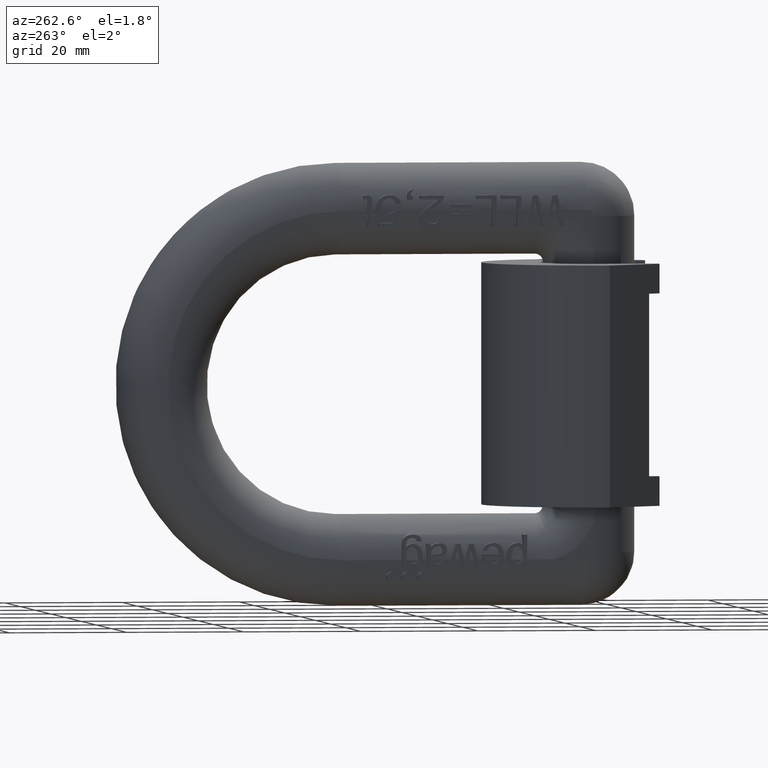
[diagram: clean part render]
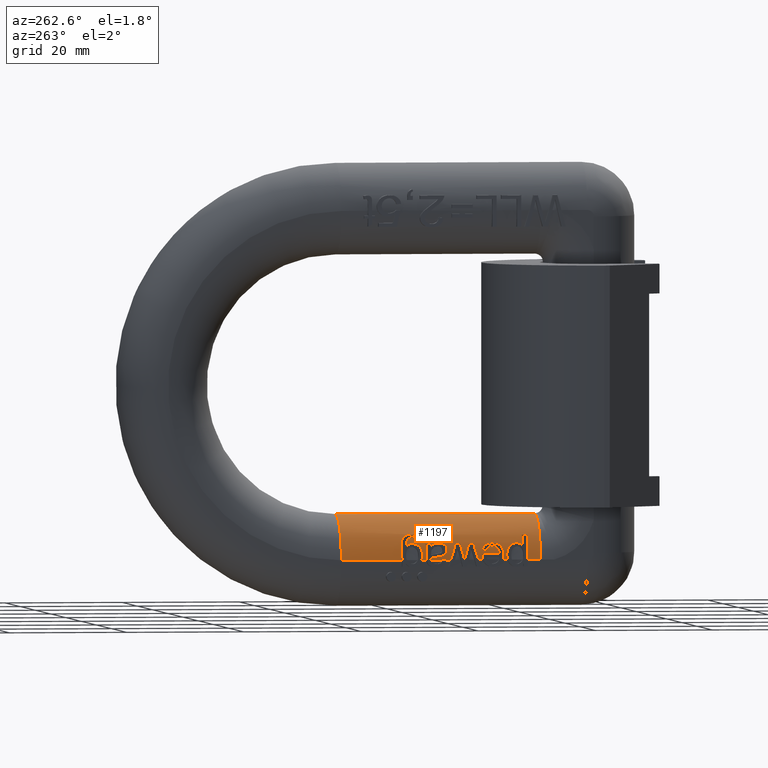
[diagram: same view with one face highlighted and labeled with its STEP entity id]
A machine part, auxiliary view. The second image highlights one B-rep face of the part: STEP entity #1197.
In plain terms, the highlighted cylindrical surface (partial cylindrical patch) has radius 7.9 mm, axis along (0, -1, 0).
Its self-contained STEP definition (entity closure, byte-faithful):
#268=ELLIPSE('',#9112,54.9746638213524,7.9);
#269=ELLIPSE('',#9113,59.4329778568096,7.9);
#270=ELLIPSE('',#9114,8.28975096446927,7.9);
#271=ELLIPSE('',#9115,8.18283813457714,7.9);
#272=ELLIPSE('',#9116,8.11019481597618,7.9);
#273=ELLIPSE('',#9117,8.17815357367076,7.9);
#274=ELLIPSE('',#9118,8.27441263998553,7.9);
#275=ELLIPSE('',#9119,65.836218480007,7.9);
#369=B_SPLINE_CURVE_WITH_KNOTS('',3,(#12014,#12015,#12016,#12017,#12018,
#12019,#12020,#12021),.UNSPECIFIED.,.F.,.F.,(4,2,2,4),(0.,0.25,0.499999999999999,
1.),.UNSPECIFIED.);
#370=B_SPLINE_CURVE_WITH_KNOTS('',3,(#12023,#12024,#12025,#12026,#12027,
#12028,#12029,#12030,#12031,#12032,#12033,#12034,#12035),.UNSPECIFIED.,
 .F.,.F.,(4,3,3,3,4),(0.,0.24176473689426,0.480972546753489,0.759361589386125,
1.),.UNSPECIFIED.);
#371=B_SPLINE_CURVE_WITH_KNOTS('',3,(#12037,#12038,#12039,#12040,#12041,
#12042,#12043,#12044,#12045,#12046),.UNSPECIFIED.,.F.,.F.,(4,3,3,4),(0.,
0.416369219003351,0.649863940722507,1.),.UNSPECIFIED.);
#372=B_SPLINE_CURVE_WITH_KNOTS('',3,(#12050,#12051,#12052,#12053,#12054,
#12055,#12056,#12057,#12058,#12059),.UNSPECIFIED.,.F.,.F.,(4,3,3,4),(0.,
0.266725795287567,0.672329765067977,1.),.UNSPECIFIED.);
#373=B_SPLINE_CURVE_WITH_KNOTS('',3,(#12061,#12062,#12063,#12064,#12065,
#12066,#12067,#12068,#12069,#12070,#12071,#12072,#12073,#12074,#12075,#12076,
#12077,#12078,#12079),.UNSPECIFIED.,.F.,.F.,(4,3,3,3,3,3,4),(0.,0.205361258401847,
0.339576020856814,0.474464652459027,0.68051437567483,0.857676702943028,
1.),.UNSPECIFIED.);
#374=B_SPLINE_CURVE_WITH_KNOTS('',3,(#12081,#12082,#12083,#12084,#12085,
#12086,#12087,#12088,#12089,#12090),.UNSPECIFIED.,.F.,.F.,(4,3,3,4),(0.,
0.351665430108679,0.674575786209435,1.),.UNSPECIFIED.);
#375=B_SPLINE_CURVE_WITH_KNOTS('',3,(#12092,#12093,#12094,#12095,#12096,
#12097,#12098,#12099,#12100,#12101,#12102,#12103,#12104,#12105,#12106,#12107,
#12108,#12109,#12110,#12111,#12112,#12113,#12114,#12115,#12116,#12117,#12118,
#12119),.UNSPECIFIED.,.F.,.F.,(4,3,3,3,3,3,3,3,3,4),(0.,0.162690398862545,
0.329119794208848,0.491787862101795,0.586867478444821,0.682089444763664,
0.777742501821921,0.864141641901178,0.950430655072966,1.),.UNSPECIFIED.);
#376=B_SPLINE_CURVE_WITH_KNOTS('',3,(#12120,#12121,#12122,#12123,#12124,
#12125,#12126),.UNSPECIFIED.,.F.,.F.,(4,3,4),(0.,0.383230100666856,1.),
 .UNSPECIFIED.);
#377=B_SPLINE_CURVE_WITH_KNOTS('',3,(#12128,#12129,#12130,#12131,#12132,
#12133,#12134,#12135,#12136,#12137),.UNSPECIFIED.,.F.,.F.,(4,3,3,4),(0.,
0.493896497259497,0.746015072952451,1.),.UNSPECIFIED.);
#378=B_SPLINE_CURVE_WITH_KNOTS('',3,(#12141,#12142,#12143,#12144,#12145,
#12146,#12147,#12148,#12149,#12150),.UNSPECIFIED.,.F.,.F.,(4,3,3,4),(0.,
0.493329993894906,0.745432819452995,1.),.UNSPECIFIED.);
#379=B_SPLINE_CURVE_WITH_KNOTS('',3,(#12152,#12153,#12154,#12155,#12156,
#12157,#12158,#12159,#12160,#12161),.UNSPECIFIED.,.F.,.F.,(4,3,3,4),(0.,
0.282860198907264,0.56522817524869,1.),.UNSPECIFIED.);
#380=B_SPLINE_CURVE_WITH_KNOTS('',3,(#12163,#12164,#12165,#12166,#12167,
#12168,#12169,#12170,#12171,#12172,#12173,#12174,#12175,#12176,#12177,#12178,
#12179,#12180,#12181,#12182,#12183,#12184,#12185,#12186,#12187),
 .UNSPECIFIED.,.F.,.F.,(4,3,3,3,3,3,3,3,4),(0.,0.109163385157219,0.217497050881032,
0.34400954198123,0.455940887012628,0.570913130532747,0.720419089384934,
0.937787442280195,1.),.UNSPECIFIED.);
#381=B_SPLINE_CURVE_WITH_KNOTS('',3,(#12189,#12190,#12191,#12192,#12193,
#12194,#12195,#12196,#12197,#12198),.UNSPECIFIED.,.F.,.F.,(4,3,3,4),(0.,
0.259724632083226,0.519457267892592,1.),.UNSPECIFIED.);
#382=B_SPLINE_CURVE_WITH_KNOTS('',3,(#12200,#12201,#12202,#12203,#12204,
#12205,#12206,#12207,#12208,#12209),.UNSPECIFIED.,.F.,.F.,(4,3,3,4),(0.,
0.261704967900917,0.52348176610509,1.),.UNSPECIFIED.);
#383=B_SPLINE_CURVE_WITH_KNOTS('',3,(#12211,#12212,#12213,#12214,#12215,
#12216,#12217,#12218,#12219,#12220),.UNSPECIFIED.,.F.,.F.,(4,3,3,4),(0.,
0.331278685817493,0.665208018827146,1.),.UNSPECIFIED.);
#384=B_SPLINE_CURVE_WITH_KNOTS('',3,(#12222,#12223,#12224,#12225,#12226,
#12227,#12228,#12229,#12230,#12231),.UNSPECIFIED.,.F.,.F.,(4,3,3,4),(0.,
0.336078614500432,0.667704721056258,1.),.UNSPECIFIED.);
#385=B_SPLINE_CURVE_WITH_KNOTS('',3,(#12233,#12234,#12235,#12236,#12237,
#12238,#12239),.UNSPECIFIED.,.F.,.F.,(4,3,4),(0.,0.498654946956044,1.),
 .UNSPECIFIED.);
#386=B_SPLINE_CURVE_WITH_KNOTS('',3,(#12240,#12241,#12242,#12243),
 .UNSPECIFIED.,.F.,.F.,(4,4),(0.,1.),.UNSPECIFIED.);
#387=B_SPLINE_CURVE_WITH_KNOTS('',3,(#12247,#12248,#12249,#12250),
 .UNSPECIFIED.,.F.,.F.,(4,4),(0.,1.),.UNSPECIFIED.);
#388=B_SPLINE_CURVE_WITH_KNOTS('',3,(#12266,#12267,#12268,#12269,#12270,
#12271,#12272),.UNSPECIFIED.,.F.,.F.,(4,3,4),(0.,0.827048471838855,1.),
 .UNSPECIFIED.);
#389=B_SPLINE_CURVE_WITH_KNOTS('',3,(#12276,#12277,#12278,#12279,#12280,
#12281,#12282,#12283,#12284,#12285),.UNSPECIFIED.,.F.,.F.,(4,3,3,4),(0.,
0.296408323802665,0.754910841147842,1.),.UNSPECIFIED.);
#390=B_SPLINE_CURVE_WITH_KNOTS('',3,(#12287,#12288,#12289,#12290,#12291,
#12292,#12293,#12294,#12295,#12296,#12297,#12298,#12299,#12300,#12301,#12302),
 .UNSPECIFIED.,.F.,.F.,(4,3,3,3,3,4),(0.,0.208883477669322,0.41640821783203,
0.652710915912313,0.901558973866656,1.),.UNSPECIFIED.);
#391=B_SPLINE_CURVE_WITH_KNOTS('',3,(#12304,#12305,#12306,#12307,#12308,
#12309,#12310,#12311,#12312,#12313),.UNSPECIFIED.,.F.,.F.,(4,3,3,4),(0.,
0.290853063175634,0.582287601198476,1.),.UNSPECIFIED.);
#392=B_SPLINE_CURVE_WITH_KNOTS('',3,(#12317,#12318,#12319,#12320,#12321,
#12322,#12323,#12324,#12325,#12326),.UNSPECIFIED.,.F.,.F.,(4,3,3,4),(0.,
0.266409091287245,0.758119234004696,1.),.UNSPECIFIED.);
#393=B_SPLINE_CURVE_WITH_KNOTS('',3,(#12328,#12329,#12330,#12331,#12332,
#12333,#12334,#12335,#12336,#12337,#12338,#12339,#12340,#12341,#12342,#12343),
 .UNSPECIFIED.,.F.,.F.,(4,3,3,3,3,4),(0.,0.207250247290424,0.414283822143718,
0.702761084091549,0.904358720147688,1.),.UNSPECIFIED.);
#394=B_SPLINE_CURVE_WITH_KNOTS('',3,(#12345,#12346,#12347,#12348,#12349,
#12350,#12351,#12352,#12353,#12354,#12355,#12356,#12357),.UNSPECIFIED.,
 .F.,.F.,(4,3,3,3,4),(0.,0.329819582709968,0.667302126950914,0.911129566768831,
1.),.UNSPECIFIED.);
#395=B_SPLINE_CURVE_WITH_KNOTS('',3,(#12358,#12359,#12360,#12361,#12362,
#12363,#12364,#12365,#12366,#12367,#12368,#12369,#12370,#12371,#12372,#12373),
 .UNSPECIFIED.,.F.,.F.,(4,3,3,3,3,4),(0.,0.193009618166217,0.384537269336178,
0.669322667829202,0.959843540604799,1.),.UNSPECIFIED.);
#396=B_SPLINE_CURVE_WITH_KNOTS('',3,(#12375,#12376,#12377,#12378,#12379,
#12380,#12381,#12382,#12383,#12384,#12385,#12386,#12387),.UNSPECIFIED.,
 .F.,.F.,(4,3,3,3,4),(0.,0.269496539392848,0.536531617278938,0.842604364886754,
1.),.UNSPECIFIED.);
#397=B_SPLINE_CURVE_WITH_KNOTS('',3,(#12389,#12390,#12391,#12392,#12393,
#12394,#12395,#12396,#12397,#12398),.UNSPECIFIED.,.F.,.F.,(4,3,3,4),(0.,
0.259026505906148,0.518023622086194,1.),.UNSPECIFIED.);
#1117=CYLINDRICAL_SURFACE('',#9121,7.9);
#1197=ADVANCED_FACE('',(#1904),#1117,.T.);
#1904=FACE_OUTER_BOUND('',#2364,.T.);
#2364=EDGE_LOOP('',(#3184,#3185,#3186,#3187,#3188,#3189,#3190,#3191,#3192,
#3193,#3194,#3195,#3196,#3197,#3198,#3199,#3200,#3201,#3202,#3203,#3204,
#3205,#3206,#3207,#3208,#3209,#3210,#3211,#3212,#3213,#3214,#3215,#3216,
#3217,#3218,#3219,#3220,#3221,#3222,#3223,#3224,#3225,#3226,#3227,#3228,
#3229,#3230,#3231,#3232,#3233,#3234,#3235,#3236,#3237,#3238));
#2847=CIRCLE('',#9109,7.9);
#2848=CIRCLE('',#9110,7.9);
#2849=CIRCLE('',#9111,7.9);
#2850=CIRCLE('',#9120,7.9);
#3184=ORIENTED_EDGE('',*,*,#6625,.F.);
#3185=ORIENTED_EDGE('',*,*,#6613,.F.);
#3186=ORIENTED_EDGE('',*,*,#6626,.F.);
#3187=ORIENTED_EDGE('',*,*,#6521,.F.);
#3188=ORIENTED_EDGE('',*,*,#6627,.T.);
#3189=ORIENTED_EDGE('',*,*,#6608,.F.);
#3190=ORIENTED_EDGE('',*,*,#6628,.F.);
#3191=ORIENTED_EDGE('',*,*,#6629,.F.);
#3192=ORIENTED_EDGE('',*,*,#6630,.F.);
#3193=ORIENTED_EDGE('',*,*,#6631,.F.);
#3194=ORIENTED_EDGE('',*,*,#6632,.F.);
#3195=ORIENTED_EDGE('',*,*,#6633,.F.);
#3196=ORIENTED_EDGE('',*,*,#6634,.F.);
#3197=ORIENTED_EDGE('',*,*,#6635,.F.);
#3198=ORIENTED_EDGE('',*,*,#6602,.F.);
#3199=ORIENTED_EDGE('',*,*,#6636,.F.);
#3200=ORIENTED_EDGE('',*,*,#6637,.F.);
#3201=ORIENTED_EDGE('',*,*,#6638,.F.);
#3202=ORIENTED_EDGE('',*,*,#6639,.F.);
#3203=ORIENTED_EDGE('',*,*,#6640,.F.);
#3204=ORIENTED_EDGE('',*,*,#6641,.F.);
#3205=ORIENTED_EDGE('',*,*,#6642,.F.);
#3206=ORIENTED_EDGE('',*,*,#6643,.F.);
#3207=ORIENTED_EDGE('',*,*,#6644,.F.);
#3208=ORIENTED_EDGE('',*,*,#6645,.F.);
#3209=ORIENTED_EDGE('',*,*,#6646,.F.);
#3210=ORIENTED_EDGE('',*,*,#6624,.F.);
#3211=ORIENTED_EDGE('',*,*,#6647,.F.);
#3212=ORIENTED_EDGE('',*,*,#6648,.F.);
#3213=ORIENTED_EDGE('',*,*,#6649,.F.);
#3214=ORIENTED_EDGE('',*,*,#6595,.F.);
#3215=ORIENTED_EDGE('',*,*,#6650,.F.);
#3216=ORIENTED_EDGE('',*,*,#6651,.F.);
#3217=ORIENTED_EDGE('',*,*,#6652,.F.);
#3218=ORIENTED_EDGE('',*,*,#6653,.F.);
#3219=ORIENTED_EDGE('',*,*,#6654,.F.);
#3220=ORIENTED_EDGE('',*,*,#6655,.F.);
#3221=ORIENTED_EDGE('',*,*,#6656,.F.);
#3222=ORIENTED_EDGE('',*,*,#6657,.F.);
#3223=ORIENTED_EDGE('',*,*,#6583,.F.);
#3224=ORIENTED_EDGE('',*,*,#6658,.F.);
#3225=ORIENTED_EDGE('',*,*,#6659,.F.);
#3226=ORIENTED_EDGE('',*,*,#6660,.F.);
#3227=ORIENTED_EDGE('',*,*,#6661,.F.);
#3228=ORIENTED_EDGE('',*,*,#6662,.F.);
#3229=ORIENTED_EDGE('',*,*,#6663,.F.);
#3230=ORIENTED_EDGE('',*,*,#6664,.F.);
#3231=ORIENTED_EDGE('',*,*,#6665,.F.);
#3232=ORIENTED_EDGE('',*,*,#6666,.F.);
#3233=ORIENTED_EDGE('',*,*,#6581,.F.);
#3234=ORIENTED_EDGE('',*,*,#6667,.F.);
#3235=ORIENTED_EDGE('',*,*,#6668,.F.);
#3236=ORIENTED_EDGE('',*,*,#6669,.F.);
#3237=ORIENTED_EDGE('',*,*,#6670,.F.);
#3238=ORIENTED_EDGE('',*,*,#6671,.F.);
#5625=VERTEX_POINT('',#11339);
#5629=VERTEX_POINT('',#11358);
#5672=VERTEX_POINT('',#11617);
#5677=VERTEX_POINT('',#11654);
#5678=VERTEX_POINT('',#11656);
#5679=VERTEX_POINT('',#11682);
#5680=VERTEX_POINT('',#11684);
#5691=VERTEX_POINT('',#11712);
#5692=VERTEX_POINT('',#11714);
#5698=VERTEX_POINT('',#11774);
#5699=VERTEX_POINT('',#11776);
#5704=VERTEX_POINT('',#11810);
#5705=VERTEX_POINT('',#11812);
#5708=VERTEX_POINT('',#11819);
#5716=VERTEX_POINT('',#11984);
#5717=VERTEX_POINT('',#12007);
#5718=VERTEX_POINT('',#12011);
#5719=VERTEX_POINT('',#12022);
#5720=VERTEX_POINT('',#12036);
#5721=VERTEX_POINT('',#12047);
#5722=VERTEX_POINT('',#12049);
#5723=VERTEX_POINT('',#12060);
#5724=VERTEX_POINT('',#12080);
#5725=VERTEX_POINT('',#12091);
#5726=VERTEX_POINT('',#12127);
#5727=VERTEX_POINT('',#12138);
#5728=VERTEX_POINT('',#12140);
#5729=VERTEX_POINT('',#12151);
#5730=VERTEX_POINT('',#12162);
#5731=VERTEX_POINT('',#12188);
#5732=VERTEX_POINT('',#12199);
#5733=VERTEX_POINT('',#12210);
#5734=VERTEX_POINT('',#12221);
#5735=VERTEX_POINT('',#12232);
#5736=VERTEX_POINT('',#12244);
#5737=VERTEX_POINT('',#12246);
#5738=VERTEX_POINT('',#12252);
#5739=VERTEX_POINT('',#12254);
#5740=VERTEX_POINT('',#12256);
#5741=VERTEX_POINT('',#12258);
#5742=VERTEX_POINT('',#12260);
#5743=VERTEX_POINT('',#12262);
#5744=VERTEX_POINT('',#12264);
#5745=VERTEX_POINT('',#12273);
#5746=VERTEX_POINT('',#12275);
#5747=VERTEX_POINT('',#12286);
#5748=VERTEX_POINT('',#12303);
#5749=VERTEX_POINT('',#12314);
#5750=VERTEX_POINT('',#12316);
#5751=VERTEX_POINT('',#12327);
#5752=VERTEX_POINT('',#12344);
#5753=VERTEX_POINT('',#12374);
#5754=VERTEX_POINT('',#12388);
#5755=VERTEX_POINT('',#12399);
#5756=VERTEX_POINT('',#12401);
#6521=EDGE_CURVE('',#5629,#5625,#7831,.T.);
#6581=EDGE_CURVE('',#5677,#5678,#7856,.T.);
#6583=EDGE_CURVE('',#5679,#5680,#7857,.T.);
#6595=EDGE_CURVE('',#5691,#5692,#7863,.T.);
#6602=EDGE_CURVE('',#5698,#5699,#7864,.T.);
#6608=EDGE_CURVE('',#5704,#5705,#7866,.T.);
#6613=EDGE_CURVE('',#5708,#5672,#7869,.T.);
#6624=EDGE_CURVE('',#5717,#5716,#7870,.T.);
#6625=EDGE_CURVE('',#5672,#5718,#2847,.T.);
#6626=EDGE_CURVE('',#5625,#5708,#2848,.T.);
#6627=EDGE_CURVE('',#5629,#5705,#2849,.T.);
#6628=EDGE_CURVE('',#5719,#5704,#369,.T.);
#6629=EDGE_CURVE('',#5720,#5719,#370,.T.);
#6630=EDGE_CURVE('',#5721,#5720,#371,.T.);
#6631=EDGE_CURVE('',#5722,#5721,#268,.T.);
#6632=EDGE_CURVE('',#5723,#5722,#372,.T.);
#6633=EDGE_CURVE('',#5724,#5723,#373,.T.);
#6634=EDGE_CURVE('',#5725,#5724,#374,.T.);
#6635=EDGE_CURVE('',#5699,#5725,#375,.T.);
#6636=EDGE_CURVE('',#5726,#5698,#376,.T.);
#6637=EDGE_CURVE('',#5727,#5726,#377,.T.);
#6638=EDGE_CURVE('',#5728,#5727,#7871,.T.);
#6639=EDGE_CURVE('',#5729,#5728,#378,.T.);
#6640=EDGE_CURVE('',#5730,#5729,#379,.T.);
#6641=EDGE_CURVE('',#5731,#5730,#380,.T.);
#6642=EDGE_CURVE('',#5732,#5731,#381,.T.);
#6643=EDGE_CURVE('',#5733,#5732,#382,.T.);
#6644=EDGE_CURVE('',#5734,#5733,#383,.T.);
#6645=EDGE_CURVE('',#5735,#5734,#384,.T.);
#6646=EDGE_CURVE('',#5716,#5735,#385,.T.);
#6647=EDGE_CURVE('',#5736,#5717,#386,.T.);
#6648=EDGE_CURVE('',#5737,#5736,#269,.T.);
#6649=EDGE_CURVE('',#5692,#5737,#387,.T.);
#6650=EDGE_CURVE('',#5738,#5691,#270,.T.);
#6651=EDGE_CURVE('',#5739,#5738,#7872,.T.);
#6652=EDGE_CURVE('',#5740,#5739,#271,.T.);
#6653=EDGE_CURVE('',#5741,#5740,#272,.T.);
#6654=EDGE_CURVE('',#5742,#5741,#7873,.T.);
#6655=EDGE_CURVE('',#5743,#5742,#273,.T.);
#6656=EDGE_CURVE('',#5744,#5743,#7874,.T.);
#6657=EDGE_CURVE('',#5680,#5744,#274,.T.);
#6658=EDGE_CURVE('',#5745,#5679,#388,.T.);
#6659=EDGE_CURVE('',#5746,#5745,#7875,.T.);
#6660=EDGE_CURVE('',#5747,#5746,#389,.T.);
#6661=EDGE_CURVE('',#5748,#5747,#390,.T.);
#6662=EDGE_CURVE('',#5749,#5748,#391,.T.);
#6663=EDGE_CURVE('',#5750,#5749,#275,.T.);
#6664=EDGE_CURVE('',#5751,#5750,#392,.T.);
#6665=EDGE_CURVE('',#5752,#5751,#393,.T.);
#6666=EDGE_CURVE('',#5678,#5752,#394,.T.);
#6667=EDGE_CURVE('',#5753,#5677,#395,.T.);
#6668=EDGE_CURVE('',#5754,#5753,#396,.T.);
#6669=EDGE_CURVE('',#5755,#5754,#397,.T.);
#6670=EDGE_CURVE('',#5756,#5755,#2850,.T.);
#6671=EDGE_CURVE('',#5718,#5756,#7876,.T.);
#7831=LINE('',#11359,#8377);
#7856=LINE('',#11655,#8402);
#7857=LINE('',#11683,#8403);
#7863=LINE('',#11713,#8409);
#7864=LINE('',#11775,#8410);
#7866=LINE('',#11811,#8412);
#7869=LINE('',#11820,#8415);
#7870=LINE('',#12008,#8416);
#7871=LINE('',#12139,#8417);
#7872=LINE('',#12253,#8418);
#7873=LINE('',#12259,#8419);
#7874=LINE('',#12263,#8420);
#7875=LINE('',#12274,#8421);
#7876=LINE('',#12402,#8422);
#8377=VECTOR('',#9634,1.);
#8402=VECTOR('',#9723,1.);
#8403=VECTOR('',#9724,1.);
#8409=VECTOR('',#9738,1.);
#8410=VECTOR('',#9739,1.);
#8412=VECTOR('',#9743,1.);
#8415=VECTOR('',#9750,1.);
#8416=VECTOR('',#9763,1.);
#8417=VECTOR('',#9774,1.);
#8418=VECTOR('',#9779,1.);
#8419=VECTOR('',#9784,1.);
#8420=VECTOR('',#9787,1.);
#8421=VECTOR('',#9790,1.);
#8422=VECTOR('',#9795,1.);
#9109=AXIS2_PLACEMENT_3D('',#12010,#9766,#9767);
#9110=AXIS2_PLACEMENT_3D('',#12012,#9768,#9769);
#9111=AXIS2_PLACEMENT_3D('',#12013,#9770,#9771);
#9112=AXIS2_PLACEMENT_3D('',#12048,#9772,#9773);
#9113=AXIS2_PLACEMENT_3D('',#12245,#9775,#9776);
#9114=AXIS2_PLACEMENT_3D('',#12251,#9777,#9778);
#9115=AXIS2_PLACEMENT_3D('',#12255,#9780,#9781);
#9116=AXIS2_PLACEMENT_3D('',#12257,#9782,#9783);
#9117=AXIS2_PLACEMENT_3D('',#12261,#9785,#9786);
#9118=AXIS2_PLACEMENT_3D('',#12265,#9788,#9789);
#9119=AXIS2_PLACEMENT_3D('',#12315,#9791,#9792);
#9120=AXIS2_PLACEMENT_3D('',#12400,#9793,#9794);
#9121=AXIS2_PLACEMENT_3D('',#12403,#9796,#9797);
#9634=DIRECTION('',(0.,-1.,0.));
#9723=DIRECTION('',(0.,1.,0.));
#9724=DIRECTION('',(0.,1.,0.));
#9738=DIRECTION('',(0.,1.,0.));
#9739=DIRECTION('',(0.,1.,0.));
#9743=DIRECTION('',(0.,1.,0.));
#9750=DIRECTION('',(0.,1.,0.));
#9763=DIRECTION('',(0.,1.,0.));
#9766=DIRECTION('',(0.,1.,0.));
#9767=DIRECTION('',(0.,0.,-1.));
#9768=DIRECTION('',(-2.19743750946395E-15,-1.,0.));
#9769=DIRECTION('',(1.,-2.19585250123646E-15,0.));
#9770=DIRECTION('',(3.337879761211E-17,-1.,8.78341000494586E-16));
#9771=DIRECTION('',(0.,-8.78341000494586E-16,-1.));
#9772=DIRECTION('',(0.,-0.143702561341205,0.989620924326066));
#9773=DIRECTION('',(0.,-0.989620924326066,-0.143702561341205));
#9774=DIRECTION('',(0.,1.,0.));
#9775=DIRECTION('',(0.,0.132922836527446,-0.991126389281154));
#9776=DIRECTION('',(0.,-0.991126389281154,-0.132922836527446));
#9777=DIRECTION('',(0.,-0.952983996004249,-0.303020631904454));
#9778=DIRECTION('',(0.,-0.303020631904454,0.952983996004249));
#9779=DIRECTION('',(0.,1.,0.));
#9780=DIRECTION('',(0.,0.96543520354118,-0.260643180926342));
#9781=DIRECTION('',(0.,-0.260643180926342,-0.965435203541179));
#9782=DIRECTION('',(0.,0.974082642803831,-0.226192407008513));
#9783=DIRECTION('',(0.,-0.226192407008513,-0.974082642803831));
#9784=DIRECTION('',(0.,1.,0.));
#9785=DIRECTION('',(0.,-0.9659882183472,-0.258586082406619));
#9786=DIRECTION('',(0.,-0.258586082406619,0.9659882183472));
#9787=DIRECTION('',(0.,1.,0.));
#9788=DIRECTION('',(0.,0.954750547709428,-0.297407786798777));
#9789=DIRECTION('',(0.,-0.297407786798777,-0.954750547709428));
#9790=DIRECTION('',(0.,1.,0.));
#9791=DIRECTION('',(0.,-0.119994741228934,0.992774527310911));
#9792=DIRECTION('',(0.,-0.99277452731091,-0.119994741228934));
#9793=DIRECTION('',(0.,-1.,0.));
#9794=DIRECTION('',(0.,0.,1.));
#9795=DIRECTION('',(0.,1.,0.));
#9796=DIRECTION('',(0.,-1.,0.));
#9797=DIRECTION('',(0.,0.,-1.));
#11339=CARTESIAN_POINT('',(-0.105698257603778,20.,-22.));
#11358=CARTESIAN_POINT('',(-0.105698257603778,54.,-22.));
#11359=CARTESIAN_POINT('',(-0.10569825760378,20.,-22.));
#11617=CARTESIAN_POINT('',(-8.,22.3333333333333,-29.6));
#11654=CARTESIAN_POINT('',(-8.,25.6272725781788,-29.6));
#11655=CARTESIAN_POINT('',(-8.,12.,-29.6));
#11656=CARTESIAN_POINT('',(-8.,26.4558945250312,-29.6));
#11682=CARTESIAN_POINT('',(-8.,29.8343356833846,-29.6));
#11683=CARTESIAN_POINT('',(-8.,12.,-29.6));
#11684=CARTESIAN_POINT('',(-8.,30.6298342824285,-29.6));
#11712=CARTESIAN_POINT('',(-8.,35.3325280362682,-29.6));
#11713=CARTESIAN_POINT('',(-8.,12.,-29.6));
#11714=CARTESIAN_POINT('',(-8.,36.130956195427,-29.6));
#11774=CARTESIAN_POINT('',(-8.,39.420010724363,-29.6));
#11775=CARTESIAN_POINT('',(-8.,12.,-29.6));
#11776=CARTESIAN_POINT('',(-8.,40.3265637907283,-29.6));
#11810=CARTESIAN_POINT('',(-8.,43.6666666666667,-29.6));
#11811=CARTESIAN_POINT('',(-8.,12.,-29.6));
#11812=CARTESIAN_POINT('',(-8.,54.,-29.6));
#11819=CARTESIAN_POINT('',(-8.,20.,-29.6));
#11820=CARTESIAN_POINT('',(-8.,12.,-29.6));
#11984=CARTESIAN_POINT('',(-8.,38.7480697528411,-29.6));
#12007=CARTESIAN_POINT('',(-8.,36.8076886810379,-29.6));
#12008=CARTESIAN_POINT('',(-8.,12.,-29.6));
#12010=CARTESIAN_POINT('',(-0.10569825760378,22.3333333333333,-29.9));
#12011=CARTESIAN_POINT('',(-6.56593737180056,22.3333333333333,-25.3529888291976));
#12012=CARTESIAN_POINT('',(-0.10569825760378,20.,-29.9));
#12013=CARTESIAN_POINT('',(-0.105698257603778,54.,-29.9));
#12014=CARTESIAN_POINT('',(-6.65616899227463,42.887854927225,-25.4839686194253));
#12015=CARTESIAN_POINT('',(-6.77516402839262,43.2165563925668,-25.6604785747419));
#12016=CARTESIAN_POINT('',(-6.95306051484137,43.4568332127566,-25.9420164728568));
#12017=CARTESIAN_POINT('',(-7.2987091322775,43.6525714609752,-26.6117484828858));
#12018=CARTESIAN_POINT('',(-7.4537839064312,43.6658541610096,-26.9734682343475));
#12019=CARTESIAN_POINT('',(-7.8291887354825,43.6682310171492,-28.0687440513069));
#12020=CARTESIAN_POINT('',(-7.97044847887981,43.6666666666667,-28.8223712511014));
#12021=CARTESIAN_POINT('',(-8.,43.6666666666667,-29.6));
#12022=CARTESIAN_POINT('',(-6.65616899227463,42.887854927225,-25.4839686194253));
#12023=CARTESIAN_POINT('',(-6.71776862922884,40.7527168608056,-25.5767459708365));
#12024=CARTESIAN_POINT('',(-6.65299113434188,40.8906622466866,-25.4776739866781));
#12025=CARTESIAN_POINT('',(-6.59991791575651,41.0539127434971,-25.4012422412712));
#12026=CARTESIAN_POINT('',(-6.56484646256383,41.2251726959529,-25.3514392972764));
#12027=CARTESIAN_POINT('',(-6.52997819573691,41.3954404543542,-25.301924886498));
#12028=CARTESIAN_POINT('',(-6.51136835865365,41.5772091398974,-25.2764206584625));
#12029=CARTESIAN_POINT('',(-6.50564301143054,41.7576619356107,-25.2685091873172));
#12030=CARTESIAN_POINT('',(-6.49898012026387,41.967664454533,-25.2593021874348));
#12031=CARTESIAN_POINT('',(-6.5072281010883,42.1819148334473,-25.2704443145151));
#12032=CARTESIAN_POINT('',(-6.53551399749958,42.3865120936706,-25.3100686768767));
#12033=CARTESIAN_POINT('',(-6.55991120987162,42.5629817637785,-25.344245567352));
#12034=CARTESIAN_POINT('',(-6.60088486040313,42.7357902801791,-25.401963521022));
#12035=CARTESIAN_POINT('',(-6.65616899227463,42.887854927225,-25.4839686194253));
#12036=CARTESIAN_POINT('',(-6.71776862922884,40.7527168608056,-25.5767459708365));
#12037=CARTESIAN_POINT('',(-7.24266102009136,40.334851738574,-26.5127057218385));
#12038=CARTESIAN_POINT('',(-7.17200340527354,40.3313751424122,-26.3638315100252));
#12039=CARTESIAN_POINT('',(-7.09521807127177,40.3468122456097,-26.2146419457544));
#12040=CARTESIAN_POINT('',(-7.01829126888351,40.390594691242,-26.0755970583101));
#12041=CARTESIAN_POINT('',(-6.97486210020657,40.4153121519634,-25.9970990097364));
#12042=CARTESIAN_POINT('',(-6.93097217337942,40.4494261546317,-25.9210095441154));
#12043=CARTESIAN_POINT('',(-6.88892431116688,40.4933569615685,-25.8505748177966));
#12044=CARTESIAN_POINT('',(-6.82653978050708,40.5585351330152,-25.7460739677573));
#12045=CARTESIAN_POINT('',(-6.76696903372507,40.6479433002415,-25.6519940443124));
#12046=CARTESIAN_POINT('',(-6.71776862922884,40.7527168608056,-25.5767459708365));
#12047=CARTESIAN_POINT('',(-7.24266102009136,40.334851738574,-26.5127057218385));
#12048=CARTESIAN_POINT('',(-0.10569825760378,17.0079377070326,-29.9));
#12049=CARTESIAN_POINT('',(-7.19721455253529,40.983167393332,-26.4185639976123));
#12050=CARTESIAN_POINT('',(-6.96954626247837,41.2080649009783,-25.9887865609278));
#12051=CARTESIAN_POINT('',(-6.98505441440506,41.1707227930504,-26.0160020528255));
#12052=CARTESIAN_POINT('',(-7.00328600119439,41.1377711107741,-26.0483888270914));
#12053=CARTESIAN_POINT('',(-7.02276132160477,41.1103793055468,-26.0836878313439));
#12054=CARTESIAN_POINT('',(-7.05222667851565,41.0689366334651,-26.1370937695766));
#12055=CARTESIAN_POINT('',(-7.0850966636218,41.0390687311263,-26.1982426523372));
#12056=CARTESIAN_POINT('',(-7.11769890467511,41.0183727009992,-26.2610651386056));
#12057=CARTESIAN_POINT('',(-7.1442125197065,41.0015417544832,-26.3121552220607));
#12058=CARTESIAN_POINT('',(-7.17097616304433,40.9903427838592,-26.3651176707243));
#12059=CARTESIAN_POINT('',(-7.19721455253472,40.983167393332,-26.4185639976125));
#12060=CARTESIAN_POINT('',(-6.96954626247837,41.2080649009783,-25.9887865609278));
#12061=CARTESIAN_POINT('',(-7.23616953776715,42.9406086635865,-26.4990619936898));
#12062=CARTESIAN_POINT('',(-7.17474563299187,42.9062114851597,-26.3702794671918));
#12063=CARTESIAN_POINT('',(-7.11040860458109,42.8477143012787,-26.2451105814385));
#12064=CARTESIAN_POINT('',(-7.05373076362707,42.7619396306058,-26.1403664679594));
#12065=CARTESIAN_POINT('',(-7.01633803813434,42.705350518164,-26.0712624263027));
#12066=CARTESIAN_POINT('',(-6.98121087319919,42.6363496681406,-26.0089200114676));
#12067=CARTESIAN_POINT('',(-6.95309932970259,42.5576177954915,-25.9600636353083));
#12068=CARTESIAN_POINT('',(-6.92488660061179,42.4786025328065,-25.9110314039366));
#12069=CARTESIAN_POINT('',(-6.90383260268236,42.387571463104,-25.8755599431752));
#12070=CARTESIAN_POINT('',(-6.88981554199371,42.2943234882179,-25.8520680994313));
#12071=CARTESIAN_POINT('',(-6.86843876323499,42.152115262605,-25.816241761977));
#12072=CARTESIAN_POINT('',(-6.86160394943579,42.0009320499045,-25.8051561209193));
#12073=CARTESIAN_POINT('',(-6.86307927641042,41.8527579577535,-25.8075921798199));
#12074=CARTESIAN_POINT('',(-6.86434695374604,41.7254391046614,-25.8096853677772));
#12075=CARTESIAN_POINT('',(-6.87332904207531,41.5960964155448,-25.8243561040884));
#12076=CARTESIAN_POINT('',(-6.89441294986865,41.4756120697307,-25.859783071786));
#12077=CARTESIAN_POINT('',(-6.91132190001642,41.3789855896243,-25.8881949220253));
#12078=CARTESIAN_POINT('',(-6.93688988935187,41.2860331203737,-25.9314773945981));
#12079=CARTESIAN_POINT('',(-6.96954626247837,41.2080649009783,-25.9887865609278));
#12080=CARTESIAN_POINT('',(-7.23616953776715,42.9406086635865,-26.4990619936898));
#12081=CARTESIAN_POINT('',(-7.57924626918265,42.9891976312878,-27.3395156476507));
#12082=CARTESIAN_POINT('',(-7.54463390991045,42.9898544690826,-27.2384890084613));
#12083=CARTESIAN_POINT('',(-7.50795834883567,42.9895199880729,-27.1381263095804));
#12084=CARTESIAN_POINT('',(-7.46928447399362,42.9874979594203,-27.0386020839818));
#12085=CARTESIAN_POINT('',(-7.43377496475132,42.9856413767679,-26.9472211085));
#12086=CARTESIAN_POINT('',(-7.3965493501177,42.9824687974011,-26.8564712860736));
#12087=CARTESIAN_POINT('',(-7.35773510079792,42.9762906812001,-26.7666373294885));
#12088=CARTESIAN_POINT('',(-7.3186717530985,42.9700729156754,-26.6762268451227));
#12089=CARTESIAN_POINT('',(-7.2775108149876,42.9633391251308,-26.5857389014601));
#12090=CARTESIAN_POINT('',(-7.23616953776715,42.9406086635865,-26.4990619936898));
#12091=CARTESIAN_POINT('',(-7.57924626918265,42.9891976312878,-27.3395156476507));
#12092=CARTESIAN_POINT('',(-8.,40.3265637907283,-29.6));
#12093=CARTESIAN_POINT('',(-7.99017702723148,40.2417192255965,-29.3415149631933));
#12094=CARTESIAN_POINT('',(-7.96623436257439,40.2024060122474,-29.0656852594497));
#12095=CARTESIAN_POINT('',(-7.92819549540504,40.2015927266249,-28.7961263819659));
#12096=CARTESIAN_POINT('',(-7.88933145984542,40.2007617985846,-28.5207200257959));
#12097=CARTESIAN_POINT('',(-7.83431745230929,40.2408783188892,-28.2423710694213));
#12098=CARTESIAN_POINT('',(-7.7705758773106,40.3307194924033,-27.9869785482339));
#12099=CARTESIAN_POINT('',(-7.70836593679025,40.4184018890291,-27.7377228065496));
#12100=CARTESIAN_POINT('',(-7.63543984425689,40.55293891219,-27.5010037626509));
#12101=CARTESIAN_POINT('',(-7.56801956772177,40.7304083336456,-27.3069784681652));
#12102=CARTESIAN_POINT('',(-7.52831497333769,40.8349221647452,-27.1927146885766));
#12103=CARTESIAN_POINT('',(-7.49065525624924,40.9600056466107,-27.0930702182062));
#12104=CARTESIAN_POINT('',(-7.46137204978486,41.0982486763391,-27.0183228732177));
#12105=CARTESIAN_POINT('',(-7.43204539232568,41.2366968337803,-26.9434646166559));
#12106=CARTESIAN_POINT('',(-7.41063243568499,41.3914521376641,-26.8918637043953));
#12107=CARTESIAN_POINT('',(-7.39880197847519,41.5485647873098,-26.8634496354232));
#12108=CARTESIAN_POINT('',(-7.38687494565204,41.7069599952063,-26.8348036137809));
#12109=CARTESIAN_POINT('',(-7.38287398577204,41.8712620138935,-26.8254402412013));
#12110=CARTESIAN_POINT('',(-7.38841275437254,42.032033906607,-26.8386163980066));
#12111=CARTESIAN_POINT('',(-7.39339943085194,42.1767804150404,-26.8504791848405));
#12112=CARTESIAN_POINT('',(-7.40766644831917,42.3216468019688,-26.8842322387012));
#12113=CARTESIAN_POINT('',(-7.43013211480853,42.4540193672858,-26.9398194866811));
#12114=CARTESIAN_POINT('',(-7.45259556966316,42.5863789011728,-26.9954012623691));
#12115=CARTESIAN_POINT('',(-7.48350920555856,42.7092409489311,-27.0737738616123));
#12116=CARTESIAN_POINT('',(-7.51750411229519,42.8163129701878,-27.1659308764477));
#12117=CARTESIAN_POINT('',(-7.53720745704497,42.8783715886809,-27.2193448024949));
#12118=CARTESIAN_POINT('',(-7.55808842236059,42.9359892121677,-27.2777600724209));
#12119=CARTESIAN_POINT('',(-7.57924626918265,42.9891976312878,-27.3395156476507));
#12120=CARTESIAN_POINT('',(-7.56462155404067,39.4671916010499,-27.2972200903897));
#12121=CARTESIAN_POINT('',(-7.66225486197334,39.4165263082088,-27.577012996566));
#12122=CARTESIAN_POINT('',(-7.74637902968128,39.4279419007632,-27.8701295820258));
#12123=CARTESIAN_POINT('',(-7.81246356586086,39.425347579209,-28.1634031891518));
#12124=CARTESIAN_POINT('',(-7.9186188485897,39.4211801755471,-28.6345049700098));
#12125=CARTESIAN_POINT('',(-7.98167168677769,39.4366372655094,-29.1177025499798));
#12126=CARTESIAN_POINT('',(-8.,39.420010724363,-29.6));
#12127=CARTESIAN_POINT('',(-7.56462155404067,39.4671916010499,-27.2972200903897));
#12128=CARTESIAN_POINT('',(-7.38618969400803,39.6351706036745,-26.8333333333333));
#12129=CARTESIAN_POINT('',(-7.41600559992335,39.5951571353257,-26.9041184793176));
#12130=CARTESIAN_POINT('',(-7.4459819502219,39.5604864601718,-26.9781947160356));
#12131=CARTESIAN_POINT('',(-7.47548732220737,39.5323831281364,-27.054616169433));
#12132=CARTESIAN_POINT('',(-7.49058116782138,39.5180065137628,-27.0937105289194));
#12133=CARTESIAN_POINT('',(-7.50558609956773,39.505309935401,-27.1335031912136));
#12134=CARTESIAN_POINT('',(-7.52040743295758,39.4944373327218,-27.1738144148051));
#12135=CARTESIAN_POINT('',(-7.53533754253975,39.4834849342314,-27.2144214890664));
#12136=CARTESIAN_POINT('',(-7.55010877338247,39.4743641560251,-27.2556300514671));
#12137=CARTESIAN_POINT('',(-7.56462155404067,39.4671916010499,-27.2972200903897));
#12138=CARTESIAN_POINT('',(-7.38618969400803,39.6351706036745,-26.8333333333333));
#12139=CARTESIAN_POINT('',(-7.38618969400803,12.,-26.8333333333333));
#12140=CARTESIAN_POINT('',(-7.38618969400803,38.9396542374352,-26.8333333333333));
#12141=CARTESIAN_POINT('',(-7.56889508458707,38.8063816403115,-27.3094994457235));
#12142=CARTESIAN_POINT('',(-7.54051806706342,38.8151379460964,-27.2277456445934));
#12143=CARTESIAN_POINT('',(-7.51086422421082,38.8293506998626,-27.1467043926255));
#12144=CARTESIAN_POINT('',(-7.48061551146055,38.8504674569722,-27.0679344112882));
#12145=CARTESIAN_POINT('',(-7.46512739320074,38.8612797792709,-27.0276021566118));
#12146=CARTESIAN_POINT('',(-7.44945185207665,38.8739318058,-26.9877756358114));
#12147=CARTESIAN_POINT('',(-7.43374578513792,38.8886244969783,-26.9487766207564));
#12148=CARTESIAN_POINT('',(-7.41789021734991,38.9034570430175,-26.9094063869938));
#12149=CARTESIAN_POINT('',(-7.40196309959908,38.9204104312734,-26.87078055431));
#12150=CARTESIAN_POINT('',(-7.38618969400803,38.9396542374352,-26.8333333333333));
#12151=CARTESIAN_POINT('',(-7.56889508458707,38.8063816403115,-27.3094994457235));
#12152=CARTESIAN_POINT('',(-7.40272960381881,38.0942061994317,-26.8729001449646));
#12153=CARTESIAN_POINT('',(-7.41425921102454,38.1690098349595,-26.9006930521096));
#12154=CARTESIAN_POINT('',(-7.42784325179301,38.241620380246,-26.933895962966));
#12155=CARTESIAN_POINT('',(-7.44258378166753,38.3117665631656,-26.9708173824796));
#12156=CARTESIAN_POINT('',(-7.45730825281814,38.3818363269744,-27.0076985788202));
#12157=CARTESIAN_POINT('',(-7.47323786898316,38.4497135086243,-27.0484183923886));
#12158=CARTESIAN_POINT('',(-7.48974912310388,38.5155102743692,-27.091834617458));
#12159=CARTESIAN_POINT('',(-7.51515728010297,38.61676088452,-27.1586451852565));
#12160=CARTESIAN_POINT('',(-7.54200328210549,38.7134548912489,-27.2320245289083));
#12161=CARTESIAN_POINT('',(-7.56889508458707,38.8063816403115,-27.3094994457235));
#12162=CARTESIAN_POINT('',(-7.40272960381881,38.0942061994317,-26.8729001449646));
#12163=CARTESIAN_POINT('',(-7.85604845933108,36.1464827227175,-28.3696171228788));
#12164=CARTESIAN_POINT('',(-7.83564326515052,36.0883749499739,-28.2662786686934));
#12165=CARTESIAN_POINT('',(-7.8107126284338,36.0486003403666,-28.1516127178523));
#12166=CARTESIAN_POINT('',(-7.78269372659128,36.0294384447565,-28.0362026480474));
#12167=CARTESIAN_POINT('',(-7.75478965427669,36.0103550801124,-27.9212655619415));
#12168=CARTESIAN_POINT('',(-7.72323988932292,36.0099210979857,-27.80305469503));
#12169=CARTESIAN_POINT('',(-7.68998268643684,36.0251927321722,-27.6889754179203));
#12170=CARTESIAN_POINT('',(-7.65142574914037,36.0428979927065,-27.5567169249432));
#12171=CARTESIAN_POINT('',(-7.60929017326678,36.0857629193283,-27.4259580014133));
#12172=CARTESIAN_POINT('',(-7.56945599859456,36.152971364145,-27.3111159964571));
#12173=CARTESIAN_POINT('',(-7.53403981843903,36.2127257436241,-27.2090110784962));
#12174=CARTESIAN_POINT('',(-7.49954305759146,36.2923344230138,-27.1164852403769));
#12175=CARTESIAN_POINT('',(-7.46947149096762,36.3837399075714,-27.0390834042933));
#12176=CARTESIAN_POINT('',(-7.43866270326013,36.4773862481251,-26.9597840193992));
#12177=CARTESIAN_POINT('',(-7.41268203478379,36.5882922852181,-26.8966104914217));
#12178=CARTESIAN_POINT('',(-7.39393569923267,36.7051115932667,-26.8517882300538));
#12179=CARTESIAN_POINT('',(-7.3695797973069,36.8568873684367,-26.7935535633912));
#12180=CARTESIAN_POINT('',(-7.35636191653329,37.0222446954382,-26.7634357796846));
#12181=CARTESIAN_POINT('',(-7.35134335456656,37.1861403000297,-26.7518851468126));
#12182=CARTESIAN_POINT('',(-7.34407269685599,37.4235845817086,-26.7351511304729));
#12183=CARTESIAN_POINT('',(-7.35209205995952,37.6681568792772,-26.7529628278434));
#12184=CARTESIAN_POINT('',(-7.37702008834784,37.8976052937705,-26.8116543532589));
#12185=CARTESIAN_POINT('',(-7.38426083739348,37.9642522969905,-26.8287022561262));
#12186=CARTESIAN_POINT('',(-7.39288978679844,38.0299765854032,-26.8491805926944));
#12187=CARTESIAN_POINT('',(-7.40272960381881,38.0942061994317,-26.8729001449646));
#12188=CARTESIAN_POINT('',(-7.85604845933108,36.1464827227175,-28.3696171228788));
#12189=CARTESIAN_POINT('',(-7.92098511630557,36.4907702652871,-28.7461840197834));
#12190=CARTESIAN_POINT('',(-7.91731899189321,36.4534191800981,-28.7213517983256));
#12191=CARTESIAN_POINT('',(-7.91317591231343,36.4176020585011,-28.6941078682971));
#12192=CARTESIAN_POINT('',(-7.90852919664191,36.3838082548957,-28.6647553534666));
#12193=CARTESIAN_POINT('',(-7.90388233335593,36.350013377746,-28.6354019061806));
#12194=CARTESIAN_POINT('',(-7.89871190664745,36.3181037586601,-28.6038198871984));
#12195=CARTESIAN_POINT('',(-7.89301811656691,36.2884272877726,-28.5704702281639));
#12196=CARTESIAN_POINT('',(-7.88252924879246,36.2337585039313,-28.5090348469876));
#12197=CARTESIAN_POINT('',(-7.87013916753012,36.1862598421817,-28.4409769928601));
#12198=CARTESIAN_POINT('',(-7.85604845933108,36.1464827227175,-28.3696171228788));
#12199=CARTESIAN_POINT('',(-7.92098511630557,36.4907702652871,-28.7461840197834));
#12200=CARTESIAN_POINT('',(-7.949784958958,36.9697186612004,-28.9617549245331));
#12201=CARTESIAN_POINT('',(-7.94831595522545,36.925286950944,-28.9494734930137));
#12202=CARTESIAN_POINT('',(-7.94663087366966,36.8812584250265,-28.9356240329529));
#12203=CARTESIAN_POINT('',(-7.94468816820719,36.8378778659575,-28.9200830742056));
#12204=CARTESIAN_POINT('',(-7.94274514440123,36.7944901982872,-28.9045395688226));
#12205=CARTESIAN_POINT('',(-7.94054110149119,36.7516833834407,-28.8872774337844));
#12206=CARTESIAN_POINT('',(-7.93803095977257,36.7097491364442,-28.8682226778333));
#12207=CARTESIAN_POINT('',(-7.93347329341126,36.6336090900454,-28.8336249419456));
#12208=CARTESIAN_POINT('',(-7.92787603049974,36.5599731053442,-28.7928591153528));
#12209=CARTESIAN_POINT('',(-7.92098511630557,36.4907702652871,-28.7461840197834));
#12210=CARTESIAN_POINT('',(-7.949784958958,36.9697186612004,-28.9617549245331));
#12211=CARTESIAN_POINT('',(-7.96091199172953,37.5625040671569,-29.0599897672039));
#12212=CARTESIAN_POINT('',(-7.96007308312921,37.4965638440969,-29.0521448551997));
#12213=CARTESIAN_POINT('',(-7.95916307232525,37.4306853890404,-29.0437424048514));
#12214=CARTESIAN_POINT('',(-7.95814314751614,37.3649305860876,-29.0344890232416));
#12215=CARTESIAN_POINT('',(-7.9571151288637,37.2986539710672,-29.0251622093353));
#12216=CARTESIAN_POINT('',(-7.95597914412753,37.2324798078542,-29.0149981294316));
#12217=CARTESIAN_POINT('',(-7.95464427876501,37.1665834669164,-29.0033136797646));
#12218=CARTESIAN_POINT('',(-7.95330642479915,37.1005395919797,-28.9916030700171));
#12219=CARTESIAN_POINT('',(-7.95179331335981,37.034639872049,-28.9785455333695));
#12220=CARTESIAN_POINT('',(-7.949784958958,36.9697186612004,-28.9617549245331));
#12221=CARTESIAN_POINT('',(-7.96091199172953,37.5625040671569,-29.0599897672039));
#12222=CARTESIAN_POINT('',(-7.98173227632509,38.7508513915099,-29.2851112816577));
#12223=CARTESIAN_POINT('',(-7.97829212951657,38.622649119707,-29.2410468640076));
#12224=CARTESIAN_POINT('',(-7.97550700774421,38.4901867238605,-29.209443472597));
#12225=CARTESIAN_POINT('',(-7.97300470040123,38.3574040115728,-29.182024140296));
#12226=CARTESIAN_POINT('',(-7.97053324947204,38.2262586674229,-29.1549429208434));
#12227=CARTESIAN_POINT('',(-7.96835960825177,38.0941180031454,-29.1325663677658));
#12228=CARTESIAN_POINT('',(-7.96637174185143,37.9616766691477,-29.1127183642139));
#12229=CARTESIAN_POINT('',(-7.96437956164776,37.8289479285789,-29.092827289164));
#12230=CARTESIAN_POINT('',(-7.96257730484534,37.6958129337821,-29.075562661376));
#12231=CARTESIAN_POINT('',(-7.96091199172953,37.5625040671569,-29.0599897672039));
#12232=CARTESIAN_POINT('',(-7.98173227632509,38.7508513915099,-29.2851112816577));
#12233=CARTESIAN_POINT('',(-8.,38.7480697528411,-29.6));
#12234=CARTESIAN_POINT('',(-7.99801946273923,38.7533975826042,-29.547883470838));
#12235=CARTESIAN_POINT('',(-7.99550410397425,38.7555727577199,-29.4953869420061));
#12236=CARTESIAN_POINT('',(-7.99247196882336,38.754924075228,-29.4430531453049));
#12237=CARTESIAN_POINT('',(-7.98941896929145,38.7542709290965,-29.3903592352774));
#12238=CARTESIAN_POINT('',(-7.98583890772162,38.7524732741008,-29.3377126184794));
#12239=CARTESIAN_POINT('',(-7.98173227632509,38.7508513915099,-29.2851112816577));
#12240=CARTESIAN_POINT('',(-7.99594203898416,36.7809158152751,-29.5075040504818));
#12241=CARTESIAN_POINT('',(-7.99748570020586,36.789084480418,-29.5385358697145));
#12242=CARTESIAN_POINT('',(-7.99883721650327,36.7979674927465,-29.5694021206954));
#12243=CARTESIAN_POINT('',(-8.00000000000083,36.8076886810379,-29.599999999998));
#12244=CARTESIAN_POINT('',(-7.99594203898416,36.7809158152751,-29.5075040504818));
#12245=CARTESIAN_POINT('',(-0.10569825760378,33.8543073902952,-29.9));
#12246=CARTESIAN_POINT('',(-7.99980159835623,36.129823648077,-29.5948239106336));
#12247=CARTESIAN_POINT('',(-8.,36.130956195427,-29.6));
#12248=CARTESIAN_POINT('',(-7.99993444730631,36.1305768129717,-29.5982750241865));
#12249=CARTESIAN_POINT('',(-7.99986831357652,36.1301993005021,-29.5965496580354));
#12250=CARTESIAN_POINT('',(-7.99980159835623,36.129823648077,-29.5948239106336));
#12251=CARTESIAN_POINT('',(-0.10569825760378,35.4279191340752,-29.9));
#12252=CARTESIAN_POINT('',(-7.38618969400803,34.4528101342704,-26.8333333333333));
#12253=CARTESIAN_POINT('',(-7.38618969400803,12.,-26.8333333333333));
#12254=CARTESIAN_POINT('',(-7.38618969400803,33.7600702804711,-26.8333333333333));
#12255=CARTESIAN_POINT('',(-0.10569825760378,32.9321475447878,-29.9));
#12256=CARTESIAN_POINT('',(-7.96975937148944,33.1353549814538,-29.1473096273557));
#12257=CARTESIAN_POINT('',(-0.10569825760378,32.9605722272611,-29.9));
#12258=CARTESIAN_POINT('',(-8.,33.030235435618,-29.6));
#12259=CARTESIAN_POINT('',(-8.,12.,-29.6));
#12260=CARTESIAN_POINT('',(-8.,32.927786977246,-29.6));
#12261=CARTESIAN_POINT('',(-0.10569825760378,33.0080941934714,-29.9));
#12262=CARTESIAN_POINT('',(-7.38618969400803,32.1871759831674,-26.8333333333333));
#12263=CARTESIAN_POINT('',(-7.38618969400803,12.,-26.8333333333333));
#12264=CARTESIAN_POINT('',(-7.38618969400803,31.491659616928,-26.8333333333333));
#12265=CARTESIAN_POINT('',(-0.10569825760378,30.536383342543,-29.9));
#12266=CARTESIAN_POINT('',(-7.89757921033613,29.9479187002451,-28.5974673829624));
#12267=CARTESIAN_POINT('',(-7.94368613655391,29.9577658735662,-28.8732836469746));
#12268=CARTESIAN_POINT('',(-7.97540592754517,29.9459123562298,-29.1570965100723));
#12269=CARTESIAN_POINT('',(-7.99164619376983,29.8819356317099,-29.4290168282429));
#12270=CARTESIAN_POINT('',(-7.9950836790163,29.8683940404815,-29.4865726631655));
#12271=CARTESIAN_POINT('',(-7.99786037256277,29.8525914386733,-29.543697117971));
#12272=CARTESIAN_POINT('',(-8.00000000000036,29.8343356833846,-29.5999999999996));
#12273=CARTESIAN_POINT('',(-7.89757921033613,29.9479187002451,-28.5974673829624));
#12274=CARTESIAN_POINT('',(-7.89757921033613,12.,-28.5974673829624));
#12275=CARTESIAN_POINT('',(-7.89757921033613,27.0159215635236,-28.5974673829624));
#12276=CARTESIAN_POINT('',(-7.67052877496734,27.3824212056138,-27.623305193144));
#12277=CARTESIAN_POINT('',(-7.69314442133404,27.3092040077986,-27.6984507643859));
#12278=CARTESIAN_POINT('',(-7.71792495334012,27.2471793898892,-27.7850319591328));
#12279=CARTESIAN_POINT('',(-7.74233095797615,27.1978437919566,-27.8771700517336));
#12280=CARTESIAN_POINT('',(-7.77988784572728,27.1219242983188,-28.0189556513438));
#12281=CARTESIAN_POINT('',(-7.81720002438746,27.0737511722409,-28.1768539008706));
#12282=CARTESIAN_POINT('',(-7.84941489866637,27.0457249784951,-28.3363975623803));
#12283=CARTESIAN_POINT('',(-7.86678400525614,27.0306142584512,-28.4224177913743));
#12284=CARTESIAN_POINT('',(-7.88292194289708,27.0210851969073,-28.5097861368396));
#12285=CARTESIAN_POINT('',(-7.89757921033613,27.0159215635236,-28.5974673829624));
#12286=CARTESIAN_POINT('',(-7.67052877496734,27.3824212056138,-27.623305193144));
#12287=CARTESIAN_POINT('',(-7.62372719719229,28.830372443114,-27.4732241835081));
#12288=CARTESIAN_POINT('',(-7.60323948502144,28.7426265992462,-27.4097542857287));
#12289=CARTESIAN_POINT('',(-7.58649664992765,28.641622523492,-27.3605677916748));
#12290=CARTESIAN_POINT('',(-7.57590154701905,28.5363277937312,-27.3297737813941));
#12291=CARTESIAN_POINT('',(-7.56534091055003,28.4313755933891,-27.299079945685));
#12292=CARTESIAN_POINT('',(-7.56049015858868,28.3200458405721,-27.2854105584085));
#12293=CARTESIAN_POINT('',(-7.56032966671566,28.2101897170395,-27.2849530493159));
#12294=CARTESIAN_POINT('',(-7.5601473043321,28.0853633058343,-27.2844331946525));
#12295=CARTESIAN_POINT('',(-7.56596805725207,27.9584476749149,-27.3007877817714));
#12296=CARTESIAN_POINT('',(-7.57865284128901,27.8399052879542,-27.3377842030426));
#12297=CARTESIAN_POINT('',(-7.5919595474334,27.7155508878833,-27.3765945213591));
#12298=CARTESIAN_POINT('',(-7.6133029840717,27.5975425750196,-27.4397415887289));
#12299=CARTESIAN_POINT('',(-7.63851409831097,27.4968095271163,-27.5195198992659));
#12300=CARTESIAN_POINT('',(-7.64863703749644,27.4563625041005,-27.5515530326777));
#12301=CARTESIAN_POINT('',(-7.65941836371644,27.4181740080949,-27.5863883530659));
#12302=CARTESIAN_POINT('',(-7.67052877496734,27.3824212056138,-27.623305193144));
#12303=CARTESIAN_POINT('',(-7.62372719719229,28.830372443114,-27.4732241835081));
#12304=CARTESIAN_POINT('',(-7.79263580880919,29.2412962842455,-28.0776413404963));
#12305=CARTESIAN_POINT('',(-7.77658926592133,29.2165297993292,-28.0099550085833));
#12306=CARTESIAN_POINT('',(-7.75987841202694,29.1884087055833,-27.9434893355865));
#12307=CARTESIAN_POINT('',(-7.74289655844,29.1560900807271,-27.8793065265349));
#12308=CARTESIAN_POINT('',(-7.725895208737,29.1237343522852,-27.815050032035));
#12309=CARTESIAN_POINT('',(-7.70853539547498,29.0870006377538,-27.7527760210285));
#12310=CARTESIAN_POINT('',(-7.69154477095589,29.0450307047527,-27.6943407616171));
#12311=CARTESIAN_POINT('',(-7.6673699300619,28.9853144505624,-27.6111970786242));
#12312=CARTESIAN_POINT('',(-7.64351254360504,28.9135283875427,-27.5345181876349));
#12313=CARTESIAN_POINT('',(-7.62372719719229,28.830372443114,-27.4732241835081));
#12314=CARTESIAN_POINT('',(-7.79263580880919,29.2412962842455,-28.0776413404963));
#12315=CARTESIAN_POINT('',(-0.10569825760378,14.1640417458317,-29.9));
#12316=CARTESIAN_POINT('',(-7.77242795667965,29.9298713693846,-27.9944145987891));
#12317=CARTESIAN_POINT('',(-7.48273616572891,29.3259799136678,-27.0734629487507));
#12318=CARTESIAN_POINT('',(-7.50575004343473,29.4065764125667,-27.133527347402));
#12319=CARTESIAN_POINT('',(-7.53089218418342,29.4813750929956,-27.2013626009462));
#12320=CARTESIAN_POINT('',(-7.55694407074925,29.5483415569863,-27.2753217659908));
#12321=CARTESIAN_POINT('',(-7.60458258091836,29.6707965111696,-27.4105635814799));
#12322=CARTESIAN_POINT('',(-7.65606553641409,29.7687203956338,-27.5692527531492));
#12323=CARTESIAN_POINT('',(-7.70382577744141,29.8403180106763,-27.73702561451));
#12324=CARTESIAN_POINT('',(-7.72755263362163,29.8758870588724,-27.8203736560363));
#12325=CARTESIAN_POINT('',(-7.75060794185127,29.9055379892802,-27.9066262710591));
#12326=CARTESIAN_POINT('',(-7.77242795667965,29.9298713693846,-27.9944145987891));
#12327=CARTESIAN_POINT('',(-7.48273616572891,29.3259799136678,-27.0734629487507));
#12328=CARTESIAN_POINT('',(-7.55456172825777,26.8326717424785,-27.2685682612774));
#12329=CARTESIAN_POINT('',(-7.5083889073733,26.9589088958137,-27.137865635113));
#12330=CARTESIAN_POINT('',(-7.46484425431759,27.1097237828045,-27.0258240810282));
#12331=CARTESIAN_POINT('',(-7.43154312629797,27.2747507824451,-26.9433131786023));
#12332=CARTESIAN_POINT('',(-7.39824181299499,27.4397787002755,-26.8608018170959));
#12333=CARTESIAN_POINT('',(-7.37454349094445,27.6225042365722,-26.8056607473048));
#12334=CARTESIAN_POINT('',(-7.36175122175484,27.8071792995318,-26.7759488830311));
#12335=CARTESIAN_POINT('',(-7.34397896041259,28.0637478124099,-26.7346702788202));
#12336=CARTESIAN_POINT('',(-7.34379509097372,28.3320118621486,-26.7342517496116));
#12337=CARTESIAN_POINT('',(-7.36151745946916,28.5886038031014,-26.7754059927982));
#12338=CARTESIAN_POINT('',(-7.37393912199714,28.7684498828583,-26.8042511282884));
#12339=CARTESIAN_POINT('',(-7.39692482737715,28.9466080317412,-26.8576938796106));
#12340=CARTESIAN_POINT('',(-7.42962924851357,29.1069811280432,-26.9385755386316));
#12341=CARTESIAN_POINT('',(-7.44531150488532,29.1838824130666,-26.9773594971444));
#12342=CARTESIAN_POINT('',(-7.46325442716145,29.2574299084327,-27.0226171535878));
#12343=CARTESIAN_POINT('',(-7.48273616572891,29.3259799136678,-27.0734629487507));
#12344=CARTESIAN_POINT('',(-7.55456172825777,26.8326717424785,-27.2685682612774));
#12345=CARTESIAN_POINT('',(-8.,26.4558945250312,-29.6));
#12346=CARTESIAN_POINT('',(-7.99011132358277,26.3677067419627,-29.3397860150983));
#12347=CARTESIAN_POINT('',(-7.96579145908361,26.3319643508664,-29.0606529340421));
#12348=CARTESIAN_POINT('',(-7.92711407545306,26.3277743794371,-28.7884899441314));
#12349=CARTESIAN_POINT('',(-7.88752173571298,26.3234852896187,-28.5098886389306));
#12350=CARTESIAN_POINT('',(-7.83145087546178,26.351005945224,-28.2279845574934));
#12351=CARTESIAN_POINT('',(-7.76536450846378,26.4304759684832,-27.9662179736495));
#12352=CARTESIAN_POINT('',(-7.71750833828105,26.4880238581657,-27.7766607812415));
#12353=CARTESIAN_POINT('',(-7.66353134517079,26.5751000657907,-27.5941174914658));
#12354=CARTESIAN_POINT('',(-7.6113868549784,26.6917138691692,-27.4353217899205));
#12355=CARTESIAN_POINT('',(-7.59214416247484,26.7347474390018,-27.3767219868646));
#12356=CARTESIAN_POINT('',(-7.57305035084151,26.7819253555667,-27.3209044945758));
#12357=CARTESIAN_POINT('',(-7.55456172825777,26.8326717424785,-27.2685682612774));
#12358=CARTESIAN_POINT('',(-7.45354472348255,24.9002190841847,-26.9984224439328));
#12359=CARTESIAN_POINT('',(-7.49186547095489,25.0578857693953,-27.0954644713967));
#12360=CARTESIAN_POINT('',(-7.53931457322717,25.1985616372908,-27.2215075521637));
#12361=CARTESIAN_POINT('',(-7.58794993101432,25.3115709173877,-27.3650621515025));
#12362=CARTESIAN_POINT('',(-7.63638220986214,25.4241083225816,-27.5080173326999));
#12363=CARTESIAN_POINT('',(-7.68678602835935,25.5123229334113,-27.6710715698626));
#12364=CARTESIAN_POINT('',(-7.73268328631609,25.578902227934,-27.8410926752769));
#12365=CARTESIAN_POINT('',(-7.80055211067909,25.6773538271652,-28.0925049176432));
#12366=CARTESIAN_POINT('',(-7.86053972220698,25.7300241986806,-28.3671066310905));
#12367=CARTESIAN_POINT('',(-7.90483406825794,25.7433953896322,-28.6416357415391));
#12368=CARTESIAN_POINT('',(-7.95004694946332,25.7570438599667,-28.9218577826062));
#12369=CARTESIAN_POINT('',(-7.98038283857534,25.7327989756906,-29.2108944213689));
#12370=CARTESIAN_POINT('',(-7.99480783796687,25.6604724288531,-29.485331422672));
#12371=CARTESIAN_POINT('',(-7.99682966937838,25.6503350222361,-29.5237969598034));
#12372=CARTESIAN_POINT('',(-7.99855767282391,25.6392673502291,-29.5620461135356));
#12373=CARTESIAN_POINT('',(-8.,25.6272725781788,-29.6));
#12374=CARTESIAN_POINT('',(-7.45354472348255,24.9002190841847,-26.9984224439328));
#12375=CARTESIAN_POINT('',(-7.40724801192328,23.4342205158239,-26.8838151274836));
#12376=CARTESIAN_POINT('',(-7.38147638247858,23.5545478952636,-26.8214274282563));
#12377=CARTESIAN_POINT('',(-7.3634000164034,23.6894519580552,-26.7797093698128));
#12378=CARTESIAN_POINT('',(-7.35498384282413,23.8257847993857,-26.7602773205397));
#12379=CARTESIAN_POINT('',(-7.34661017548327,23.9614290859708,-26.7409434136483));
#12380=CARTESIAN_POINT('',(-7.34687083757544,24.1016658721906,-26.7415532131986));
#12381=CARTESIAN_POINT('',(-7.35448154104389,24.2375954596759,-26.7591178134608));
#12382=CARTESIAN_POINT('',(-7.36318461485354,24.3930351293074,-26.779203474813));
#12383=CARTESIAN_POINT('',(-7.38241765763751,24.5462743690383,-26.8236411297367));
#12384=CARTESIAN_POINT('',(-7.40837072073673,24.6877365290165,-26.8865344043444));
#12385=CARTESIAN_POINT('',(-7.42183735493679,24.7611390077257,-26.9191687303794));
#12386=CARTESIAN_POINT('',(-7.43712843846639,24.8321268753002,-26.9568504578294));
#12387=CARTESIAN_POINT('',(-7.45354472348255,24.9002190841847,-26.9984224439328));
#12388=CARTESIAN_POINT('',(-7.40724801192328,23.4342205158239,-26.8838151274836));
#12389=CARTESIAN_POINT('',(-7.54193490104466,22.9996963189519,-27.2330945680907));
#12390=CARTESIAN_POINT('',(-7.52854335940548,23.0299438102273,-27.1957544091717));
#12391=CARTESIAN_POINT('',(-7.51541888667042,23.0624522609801,-27.160047202557));
#12392=CARTESIAN_POINT('',(-7.50275410912514,23.0969109108756,-27.1262724125333));
#12393=CARTESIAN_POINT('',(-7.4900900929719,23.1313674891562,-27.0924996530117));
#12394=CARTESIAN_POINT('',(-7.47784842548414,23.1678750704227,-27.060557409491));
#12395=CARTESIAN_POINT('',(-7.46617849143895,23.2060314565562,-27.0306218918864));
#12396=CARTESIAN_POINT('',(-7.44452561701389,23.2768283808802,-26.9750783043192));
#12397=CARTESIAN_POINT('',(-7.42473172571985,23.3537897583421,-26.9261395245519));
#12398=CARTESIAN_POINT('',(-7.40724801192328,23.4342205158239,-26.8838151274836));
#12399=CARTESIAN_POINT('',(-7.54193490104466,22.9996963189519,-27.2330945680907));
#12400=CARTESIAN_POINT('',(-0.10569825760378,22.9996963189519,-29.9));
#12401=CARTESIAN_POINT('',(-6.56593737180056,22.9996963189519,-25.3529888291976));
#12402=CARTESIAN_POINT('',(-6.56593737180056,12.,-25.3529888291976));
#12403=CARTESIAN_POINT('',(-0.10569825760378,12.,-29.9));